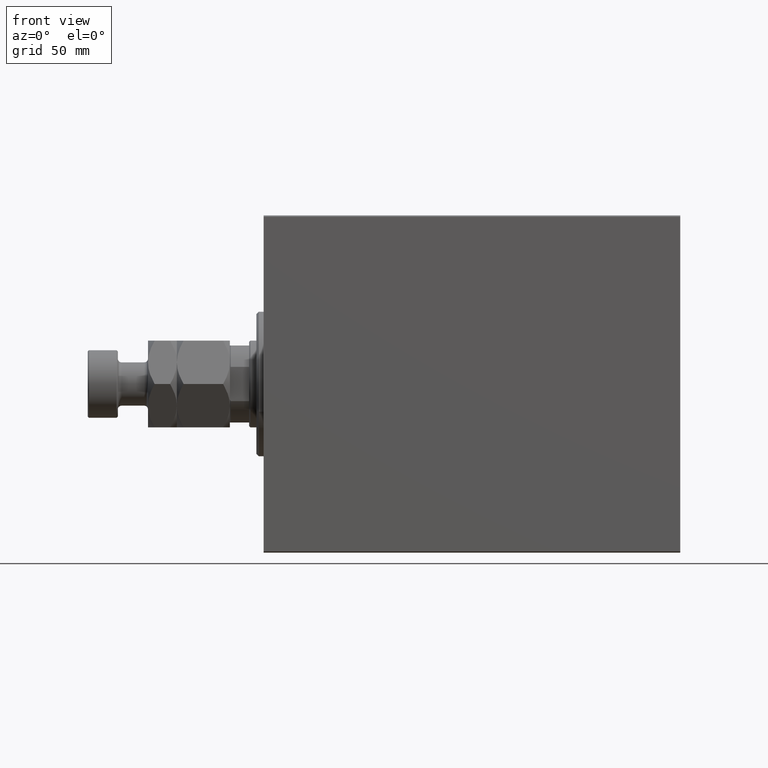
[diagram: clean part render]
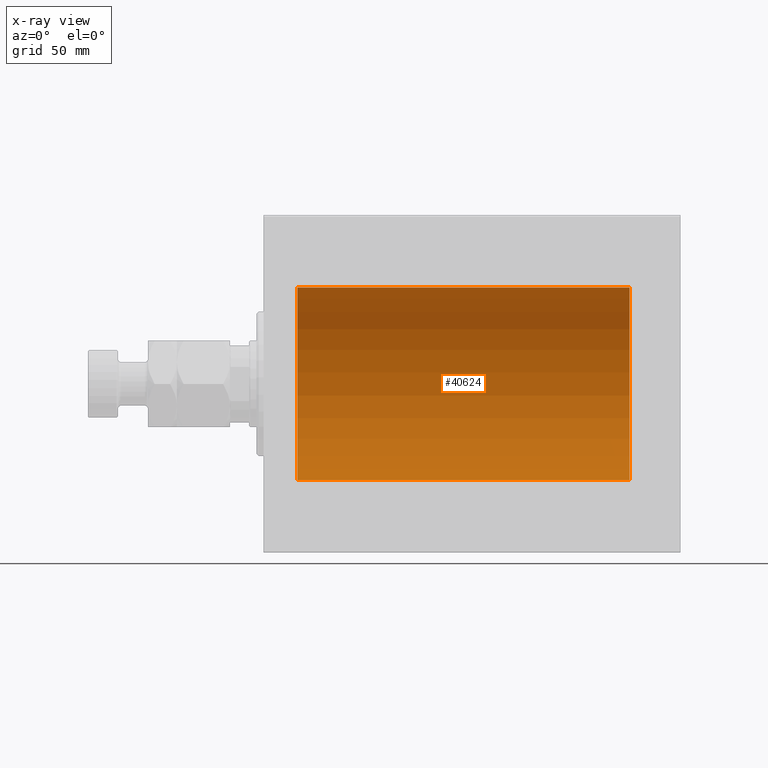
[diagram: x-ray — body ghosted, one internal face saturated and labeled with its STEP entity id]
A machine part, front view, then the same camera in x-ray: the body is ghosted and one INTERNAL B-rep face — a face not visible from any outside direction — is saturated and labeled: STEP entity #40624.
In plain terms, the highlighted cylindrical surface (partial cylindrical patch) has radius 40 mm, axis along (-1, -0, -0).
Its self-contained STEP definition (entity closure, byte-faithful):
#232 = CARTESIAN_POINT ( 'NONE',  ( 152.0000000000000000, 4.898587196589413026E-15, -40.00000000000000000 ) ) ;
#985 = EDGE_CURVE ( 'NONE', #6706, #16530, #12982, .T. ) ;
#1231 = VERTEX_POINT ( 'NONE', #12016 ) ;
#1439 = CARTESIAN_POINT ( 'NONE',  ( 13.99999999999998401, 0.000000000000000000, 40.00000000000000000 ) ) ;
#1577 = CARTESIAN_POINT ( 'NONE',  ( 13.99999999999998401, 0.000000000000000000, 0.000000000000000000 ) ) ;
#2164 = CARTESIAN_POINT ( 'NONE',  ( 152.0000000000000000, 0.000000000000000000, 40.00000000000000000 ) ) ;
#2535 = DIRECTION ( 'NONE',  ( -1.000000000000000000, 0.000000000000000000, 0.000000000000000000 ) ) ;
#2817 = DIRECTION ( 'NONE',  ( -1.000000000000000000, -0.000000000000000000, -0.000000000000000000 ) ) ;
#3256 = FACE_OUTER_BOUND ( 'NONE', #31450, .T. ) ;
#6221 = VERTEX_POINT ( 'NONE', #9213 ) ;
#6371 = AXIS2_PLACEMENT_3D ( 'NONE', #1577, #8480, #29881 ) ;
#6706 = VERTEX_POINT ( 'NONE', #31408 ) ;
#8480 = DIRECTION ( 'NONE',  ( -1.000000000000000000, 0.000000000000000000, 0.000000000000000000 ) ) ;
#9200 = VECTOR ( 'NONE', #23328, 1000.000000000000000 ) ;
#9213 = CARTESIAN_POINT ( 'NONE',  ( 13.99999999999998401, 4.898587196589413026E-15, -40.00000000000000000 ) ) ;
#9506 = CYLINDRICAL_SURFACE ( 'NONE', #26195, 40.00000000000000000 ) ;
#12016 = CARTESIAN_POINT ( 'NONE',  ( 152.0000000000000000, 4.898587196589413026E-15, -40.00000000000000000 ) ) ;
#12982 = LINE ( 'NONE', #2164, #9200 ) ;
#16262 = ORIENTED_EDGE ( 'NONE', *, *, #20615, .F. ) ;
#16530 = VERTEX_POINT ( 'NONE', #1439 ) ;
#17243 = DIRECTION ( 'NONE',  ( 0.000000000000000000, 0.000000000000000000, 1.000000000000000000 ) ) ;
#17872 = VECTOR ( 'NONE', #42825, 1000.000000000000000 ) ;
#19364 = ORIENTED_EDGE ( 'NONE', *, *, #40570, .F. ) ;
#20615 = EDGE_CURVE ( 'NONE', #1231, #6221, #28995, .T. ) ;
#23328 = DIRECTION ( 'NONE',  ( -1.000000000000000000, -0.000000000000000000, -0.000000000000000000 ) ) ;
#26195 = AXIS2_PLACEMENT_3D ( 'NONE', #41058, #2817, #41730 ) ;
#26964 = CIRCLE ( 'NONE', #6371, 40.00000000000000000 ) ;
#27919 = ORIENTED_EDGE ( 'NONE', *, *, #985, .T. ) ;
#28995 = LINE ( 'NONE', #232, #17872 ) ;
#29881 = DIRECTION ( 'NONE',  ( 0.000000000000000000, 0.000000000000000000, 1.000000000000000000 ) ) ;
#31290 = CARTESIAN_POINT ( 'NONE',  ( 152.0000000000000000, 0.000000000000000000, 0.000000000000000000 ) ) ;
#31408 = CARTESIAN_POINT ( 'NONE',  ( 152.0000000000000000, 0.000000000000000000, 40.00000000000000000 ) ) ;
#31450 = EDGE_LOOP ( 'NONE', ( #16262, #19364, #27919, #38776 ) ) ;
#35041 = AXIS2_PLACEMENT_3D ( 'NONE', #31290, #2535, #17243 ) ;
#38678 = CIRCLE ( 'NONE', #35041, 40.00000000000000000 ) ;
#38776 = ORIENTED_EDGE ( 'NONE', *, *, #42060, .T. ) ;
#40570 = EDGE_CURVE ( 'NONE', #6706, #1231, #38678, .T. ) ;
#40624 = ADVANCED_FACE ( 'NONE', ( #3256 ), #9506, .F. ) ;
#41058 = CARTESIAN_POINT ( 'NONE',  ( 152.0000000000000000, 0.000000000000000000, 0.000000000000000000 ) ) ;
#41730 = DIRECTION ( 'NONE',  ( 0.000000000000000000, 0.000000000000000000, 1.000000000000000000 ) ) ;
#42060 = EDGE_CURVE ( 'NONE', #16530, #6221, #26964, .T. ) ;
#42825 = DIRECTION ( 'NONE',  ( -1.000000000000000000, -0.000000000000000000, -0.000000000000000000 ) ) ;